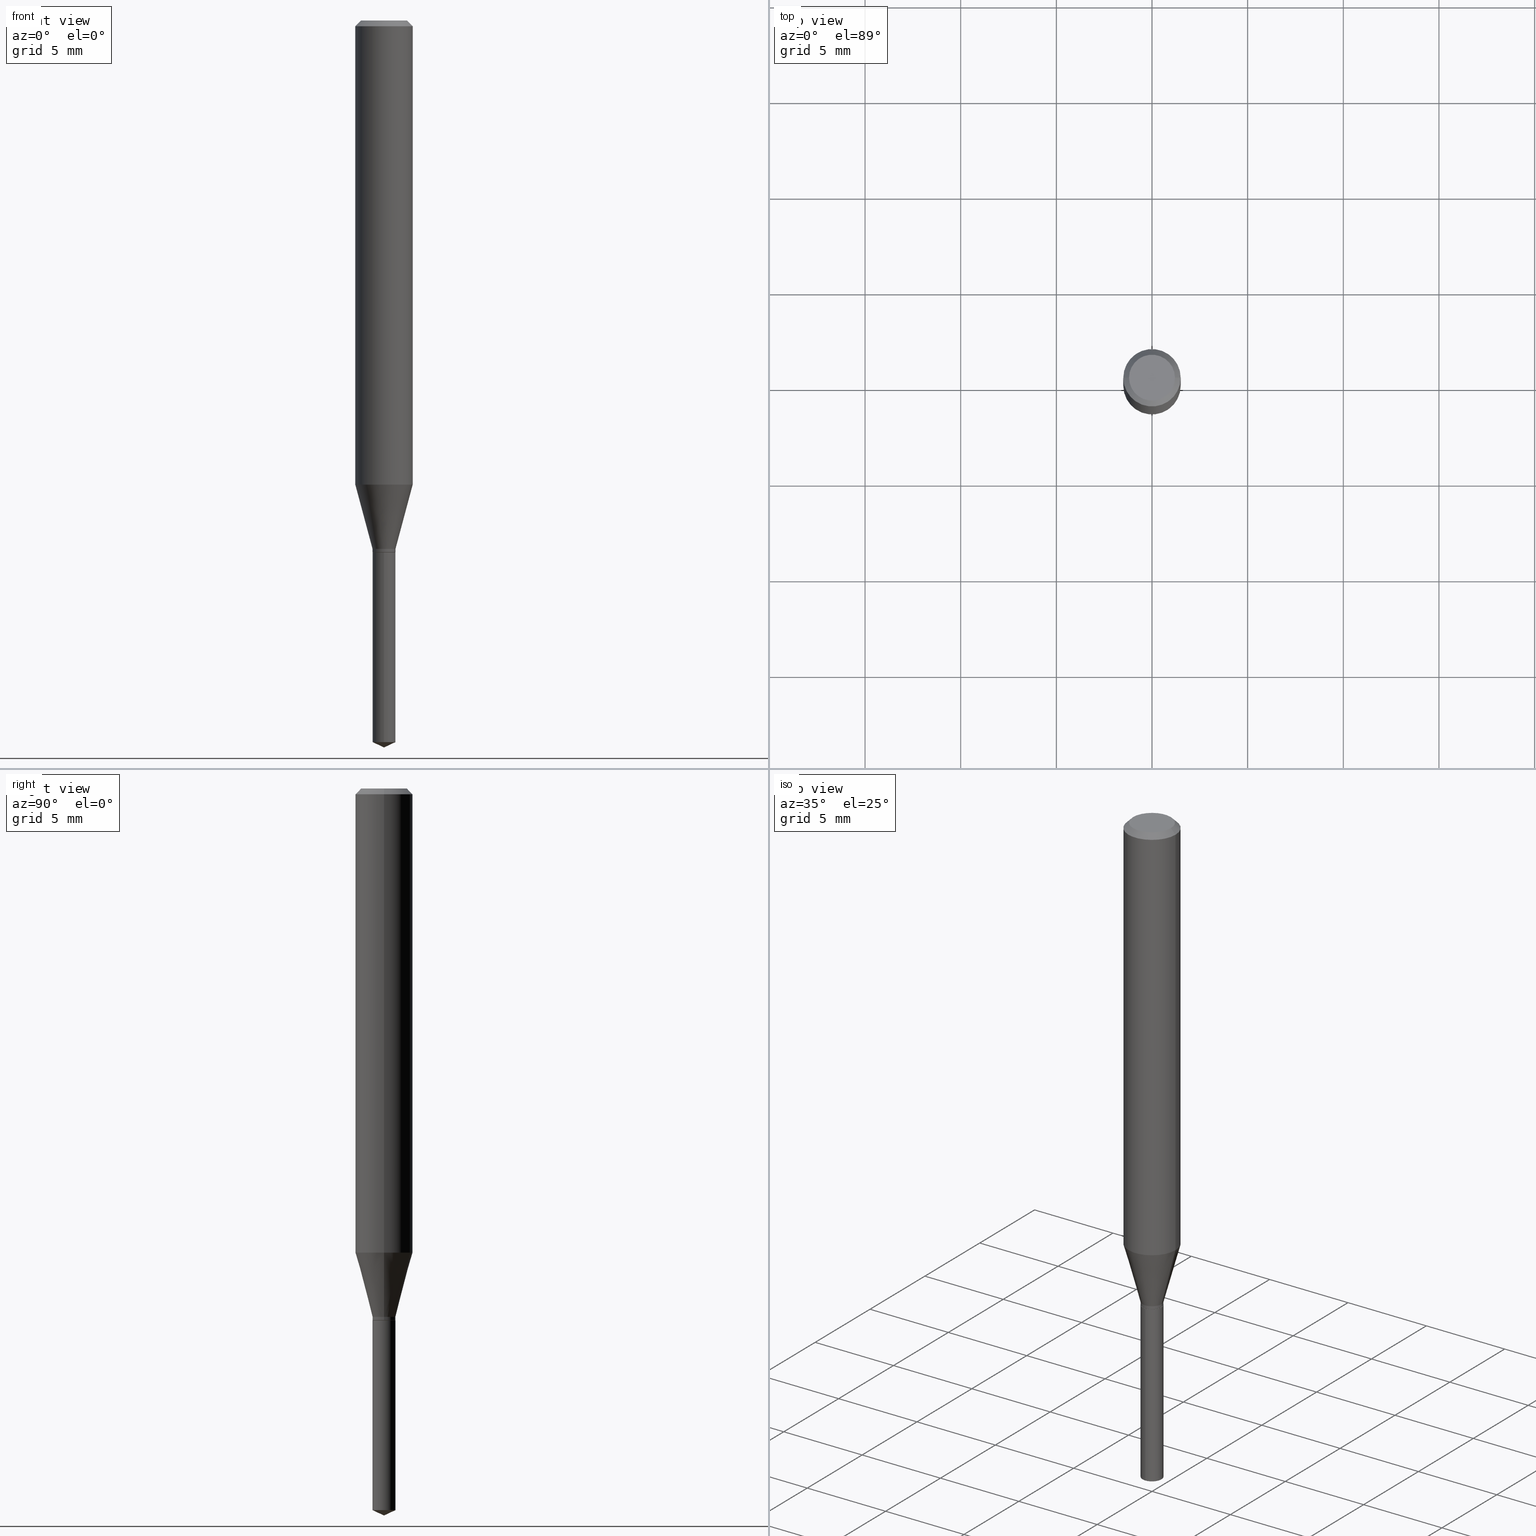
[diagram: canonical four-view strip — front | top / right | iso, engineering-drawing reading convention]
A machine part, canonical four-view strip (front | top / right | iso — engineering-drawing reading convention). The complete STEP part file that produces these views, byte-faithful:
ISO-10303-21;
HEADER;
FILE_DESCRIPTION (( 'STEP AP203' ),
    '1' );
FILE_NAME ('07504.STEP',
    '2024-04-23T22:12:35',
    ( '' ),
    ( '' ),
    'SwSTEP 2.0',
    'SolidWorks 2023',
    '' );
FILE_SCHEMA (( 'CONFIG_CONTROL_DESIGN' ));
ENDSEC;

DATA;
#1 = VECTOR ( 'NONE', #270, 39.37007874015748854 ) ;
#2 = DIRECTION ( 'NONE',  ( 1.000000000000000000, -6.982962677686266711E-15, 4.876176775795935793E-29 ) ) ;
#3 = CARTESIAN_POINT ( 'NONE',  ( -0.02360000000000000292, 1.676880856393836646E-16, -1.160868681300157803E-30 ) ) ;
#4 = DIRECTION ( 'NONE',  ( -2.445468806185136597E-29, 3.491481338843145583E-15, 1.000000000000000000 ) ) ;
#5 = CARTESIAN_POINT ( 'NONE',  ( 4.132873053354867254E-48, -5.900647395337818946E-34, -1.690012582823346072E-19 ) ) ;
#6 =( NAMED_UNIT ( * ) SI_UNIT ( $, .STERADIAN. ) SOLID_ANGLE_UNIT ( ) );
#7 = ORIENTED_EDGE ( 'NONE', *, *, #410, .T. ) ;
#8 = CIRCLE ( 'NONE', #490, 0.02360000000000000292 ) ;
#9 = DIRECTION ( 'NONE',  ( 1.000000000000000000, -6.982962677686265922E-15, 4.876176775795935793E-29 ) ) ;
#10 = LOCAL_TIME ( 18, 12, 35.00000000000000000, #83 ) ;
#11 = DIRECTION ( 'NONE',  ( -2.445468806185136597E-29, 3.491481338843145583E-15, 1.000000000000000000 ) ) ;
#12 = CARTESIAN_POINT ( 'NONE',  ( 1.676880856394200262E-16, 0.02359999999999617959, -1.094500000000000028 ) ) ;
#13 = DIRECTION ( 'NONE',  ( -6.982962677686265133E-15, -1.000000000000000000, 0.000000000000000000 ) ) ;
#14 = CIRCLE ( 'NONE', #194, 0.05904999999999999832 ) ;
#15 = FACE_OUTER_BOUND ( 'NONE', #235, .T. ) ;
#16 = EDGE_CURVE ( 'NONE', #343, #404, #303, .T. ) ;
#17 = DIRECTION ( 'NONE',  ( -2.445468806185136597E-29, 3.491481338843145583E-15, 1.000000000000000000 ) ) ;
#18 = COORDINATED_UNIVERSAL_TIME_OFFSET ( 5, 0, .BEHIND. ) ;
#19 = CC_DESIGN_DATE_AND_TIME_ASSIGNMENT ( #475, #26, ( #470 ) ) ;
#20 = DIRECTION ( 'NONE',  ( 1.000000000000000000, -6.982962677686258033E-15, 0.000000000000000000 ) ) ;
#21 = DATE_TIME_ROLE ( 'classification_date' ) ;
#22 = CLOSED_SHELL ( 'NONE', ( #240, #441, #362, #132, #291, #123, #340, #467, #376, #72, #391, #213 ) ) ;
#23 = CARTESIAN_POINT ( 'NONE',  ( -0.05904999999999999832, -1.268396528345520737E-15, -0.01181000000000007738 ) ) ;
#24 = CIRCLE ( 'NONE', #353, 0.02360000000000000292 ) ;
#25 = DESIGN_CONTEXT ( 'detailed design', #108, 'design' ) ;
#26 = DATE_TIME_ROLE ( 'creation_date' ) ;
#27 = FACE_OUTER_BOUND ( 'NONE', #420, .T. ) ;
#28 = ORIENTED_EDGE ( 'NONE', *, *, #334, .T. ) ;
#29 = EDGE_LOOP ( 'NONE', ( #409, #406, #33, #259 ) ) ;
#30 = ORIENTED_EDGE ( 'NONE', *, *, #358, .T. ) ;
#31 = CC_DESIGN_APPROVAL ( #96, ( #66 ) ) ;
#32 = DIRECTION ( 'NONE',  ( -2.445468806185136597E-29, 3.491481338843145583E-15, 1.000000000000000000 ) ) ;
#33 = ORIENTED_EDGE ( 'NONE', *, *, #169, .F. ) ;
#34 = FACE_OUTER_BOUND ( 'NONE', #29, .T. ) ;
#35 = ORIENTED_EDGE ( 'NONE', *, *, #221, .T. ) ;
#36 = DIRECTION ( 'NONE',  ( -6.328713451373376478E-15, -0.9063077870366493816, 0.4226182617407006070 ) ) ;
#37 = ORIENTED_EDGE ( 'NONE', *, *, #103, .F. ) ;
#38 = CONICAL_SURFACE ( 'NONE', #423, 0.02309999999999999901, 0.7853981633974141952 ) ;
#39 = DIRECTION ( 'NONE',  ( -2.445470214571802396E-29, 3.491479321953280158E-15, 1.000000000000000000 ) ) ;
#40 = DIRECTION ( 'NONE',  ( -1.000000000000000000, 6.982962677686265922E-15, -4.876176775795935793E-29 ) ) ;
#41 = EDGE_CURVE ( 'NONE', #294, #261, #190, .T. ) ;
#42 = CARTESIAN_POINT ( 'NONE',  ( 3.658664905062460986E-29, -5.223606628546217219E-15, -1.496099999999999985 ) ) ;
#43 = CARTESIAN_POINT ( 'NONE',  ( 0.02360000000000000292, -3.961434727051432093E-15, -1.087399999999999922 ) ) ;
#44 = EDGE_CURVE ( 'NONE', #256, #261, #271, .T. ) ;
#45 = ORIENTED_EDGE ( 'NONE', *, *, #476, .T. ) ;
#46 = MANIFOLD_SOLID_BREP ( 'Body-Move/Copy2[2]', #22 ) ;
#47 = AXIS2_PLACEMENT_3D ( 'NONE', #440, #477, #60 ) ;
#48 = CC_DESIGN_APPROVAL ( #342, ( #470 ) ) ;
#49 = VERTEX_POINT ( 'NONE', #12 ) ;
#50 = DIRECTION ( 'NONE',  ( -2.445468806185136597E-29, 3.491481338843145583E-15, 1.000000000000000000 ) ) ;
#51 = LINE ( 'NONE', #354, #166 ) ;
#52 = VECTOR ( 'NONE', #364, 39.37007874015747433 ) ;
#53 = FACE_OUTER_BOUND ( 'NONE', #138, .T. ) ;
#54 = AXIS2_PLACEMENT_3D ( 'NONE', #142, #459, #9 ) ;
#55 = CARTESIAN_POINT ( 'NONE',  ( 8.265746106709734507E-48, -1.180129479067563789E-33, -3.380025165646692144E-19 ) ) ;
#56 = DIRECTION ( 'NONE',  ( -2.445470214571802116E-29, 3.491479321953280158E-15, 1.000000000000000000 ) ) ;
#57 = CIRCLE ( 'NONE', #479, 0.04724000000000000421 ) ;
#58 = ORIENTED_EDGE ( 'NONE', *, *, #486, .F. ) ;
#59 = CALENDAR_DATE ( 2024, 23, 4 ) ;
#60 = DIRECTION ( 'NONE',  ( 1.000000000000000000, -6.982962677686258033E-15, 0.000000000000000000 ) ) ;
#61 = EDGE_LOOP ( 'NONE', ( #107, #478, #474, #77 ) ) ;
#62 = ORIENTED_EDGE ( 'NONE', *, *, #476, .F. ) ;
#63 = DIRECTION ( 'NONE',  ( -2.445470214571802116E-29, 3.491479321953280158E-15, 1.000000000000000000 ) ) ;
#64 = ORIENTED_EDGE ( 'NONE', *, *, #384, .F. ) ;
#65 = VECTOR ( 'NONE', #191, 39.37007874015747433 ) ;
#66 = SECURITY_CLASSIFICATION ( '', '', #348 ) ;
#67 = CC_DESIGN_PERSON_AND_ORGANIZATION_ASSIGNMENT ( #461, #290, ( #224 ) ) ;
#68 = ORIENTED_EDGE ( 'NONE', *, *, #324, .F. ) ;
#69 = CARTESIAN_POINT ( 'NONE',  ( 0.000000000000000000, 0.000000000000000000, 0.000000000000000000 ) ) ;
#70 = DIRECTION ( 'NONE',  ( 2.438088387897960049E-29, -3.491481338843145188E-15, -1.000000000000000000 ) ) ;
#71 = ORIENTED_EDGE ( 'NONE', *, *, #216, .F. ) ;
#72 = ADVANCED_FACE ( 'NONE', ( #383 ), #155, .F. ) ;
#73 = CIRCLE ( 'NONE', #274, 0.02360000000000000292 ) ;
#74 = CARTESIAN_POINT ( 'NONE',  ( 0.02309999999999999901, -3.982732763218375225E-15, -1.094499999999999806 ) ) ;
#75 = DIRECTION ( 'NONE',  ( -6.982962677686265133E-15, -1.000000000000000000, 0.000000000000000000 ) ) ;
#76 = DIRECTION ( 'NONE',  ( -2.445468806185136597E-29, 3.491481338843145583E-15, 1.000000000000000000 ) ) ;
#77 = ORIENTED_EDGE ( 'NONE', *, *, #183, .F. ) ;
#78 = LENGTH_MEASURE_WITH_UNIT ( LENGTH_MEASURE( 0.02539999999999999897 ), #145 );
#79 = ORIENTED_EDGE ( 'NONE', *, *, #16, .T. ) ;
#80 = CLOSED_SHELL ( 'NONE', ( #447, #243, #267, #116, #262 ) ) ;
#81 = CIRCLE ( 'NONE', #152, 0.02360000000000000292 ) ;
#82 = EDGE_CURVE ( 'NONE', #363, #404, #73, .T. ) ;
#83 = COORDINATED_UNIVERSAL_TIME_OFFSET ( 5, 0, .BEHIND. ) ;
#84 = CARTESIAN_POINT ( 'NONE',  ( 0.05905000000000013016, -3.747053579129358835E-15, -0.9550987988716831412 ) ) ;
#85 = DIRECTION ( 'NONE',  ( 1.000000000000000000, -6.982962677686258033E-15, 0.000000000000000000 ) ) ;
#86 = DIRECTION ( 'NONE',  ( -2.445470214571802116E-29, 3.491479321953280158E-15, 1.000000000000000000 ) ) ;
#87 = PRODUCT_RELATED_PRODUCT_CATEGORY ( 'detail', '', ( #224 ) ) ;
#88 = DIRECTION ( 'NONE',  ( -2.445468806185136597E-29, 3.491481338843145583E-15, 1.000000000000000000 ) ) ;
#89 = AXIS2_PLACEMENT_3D ( 'NONE', #69, #76, #2 ) ;
#90 = APPROVAL_DATE_TIME ( #325, #187 ) ;
#91 = CARTESIAN_POINT ( 'NONE',  ( 2.888098660104665518E-31, -4.123439461173782112E-17, -0.01181000000000007738 ) ) ;
#92 = APPROVAL_STATUS ( 'not_yet_approved' ) ;
#93 = EDGE_CURVE ( 'NONE', #329, #488, #24, .T. ) ;
#94 = ORIENTED_EDGE ( 'NONE', *, *, #82, .T. ) ;
#95 = DATE_AND_TIME ( #131, #281 ) ;
#96 = APPROVAL ( #195, 'UNSPECIFIED' ) ;
#97 = CIRCLE ( 'NONE', #47, 0.02360000000000000292 ) ;
#98 = ORIENTED_EDGE ( 'NONE', *, *, #158, .T. ) ;
#99 = AXIS2_PLACEMENT_3D ( 'NONE', #171, #104, #484 ) ;
#100 = APPROVAL_ROLE ( '' ) ;
#101 = LINE ( 'NONE', #257, #286 ) ;
#102 = ORIENTED_EDGE ( 'NONE', *, *, #41, .T. ) ;
#103 = EDGE_CURVE ( 'NONE', #363, #143, #381, .T. ) ;
#104 = DIRECTION ( 'NONE',  ( 2.445468806185136597E-29, -3.491481338843145583E-15, -1.000000000000000000 ) ) ;
#105 = ORIENTED_EDGE ( 'NONE', *, *, #297, .F. ) ;
#106 = FACE_OUTER_BOUND ( 'NONE', #414, .T. ) ;
#107 = ORIENTED_EDGE ( 'NONE', *, *, #16, .F. ) ;
#108 = APPLICATION_CONTEXT ( 'configuration controlled 3d designs of mechanical parts and assemblies' ) ;
#109 = CIRCLE ( 'NONE', #430, 0.02360000000000000292 ) ;
#110 = DIRECTION ( 'NONE',  ( -0.7071067811865232589, 7.493145998870265808E-15, 0.7071067811865715536 ) ) ;
#111 = CARTESIAN_POINT ( 'NONE',  ( -0.05905000000000006077, 4.195754854663395916E-16, -2.904631170795524694E-30 ) ) ;
#112 = ORIENTED_EDGE ( 'NONE', *, *, #103, .T. ) ;
#113 = VERTEX_POINT ( 'NONE', #412 ) ;
#114 = CIRCLE ( 'NONE', #449, 0.02360000000000000292 ) ;
#115 = FACE_OUTER_BOUND ( 'NONE', #61, .T. ) ;
#116 = ADVANCED_FACE ( 'NONE', ( #196 ), #118, .T. ) ;
#117 = CARTESIAN_POINT ( 'NONE',  ( -0.02309999999999999901, -3.657290953403239563E-15, -1.094499999999999806 ) ) ;
#118 = CYLINDRICAL_SURFACE ( 'NONE', #346, 0.02360000000000000292 ) ;
#119 = CALENDAR_DATE ( 2024, 23, 4 ) ;
#120 = CARTESIAN_POINT ( 'NONE',  ( -9.261968845786000133E-28, 1.322362114038720264E-13, 37.87397874015748300 ) ) ;
#121 = CONICAL_SURFACE ( 'NONE', #456, 0.02360000000000000292, 0.2617993877991500740 ) ;
#122 = CARTESIAN_POINT ( 'NONE',  ( 2.676565608369631794E-29, -3.821426325363822773E-15, -1.094499999999999806 ) ) ;
#123 = ADVANCED_FACE ( 'NONE', ( #115 ), #156, .T. ) ;
#124 = FACE_OUTER_BOUND ( 'NONE', #233, .T. ) ;
#125 = CARTESIAN_POINT ( 'NONE',  ( -1.647979191933691307E-16, -0.02360000000000382278, -1.094499999999999806 ) ) ;
#126 = APPROVAL_ROLE ( '' ) ;
#127 = CIRCLE ( 'NONE', #471, 0.02360000000000000292 ) ;
#128 = DIRECTION ( 'NONE',  ( -2.445470214571802116E-29, 3.491479321953280158E-15, 1.000000000000000000 ) ) ;
#129 = EDGE_CURVE ( 'NONE', #329, #180, #51, .T. ) ;
#130 = CARTESIAN_POINT ( 'NONE',  ( -1.647979191933595904E-16, -0.02360000000000518627, -1.485095139267541997 ) ) ;
#131 = CALENDAR_DATE ( 2024, 23, 4 ) ;
#132 = ADVANCED_FACE ( 'NONE', ( #357 ), #438, .T. ) ;
#133 = DIRECTION ( 'NONE',  ( -6.982962677686265133E-15, -1.000000000000000000, 5.787813545898861862E-15 ) ) ;
#134 = ORIENTED_EDGE ( 'NONE', *, *, #328, .F. ) ;
#135 = PERSON_AND_ORGANIZATION_ROLE ( 'design_supplier' ) ;
#136 = CARTESIAN_POINT ( 'NONE',  ( 3.658667988020872822E-29, -5.223602213574301462E-15, -1.496099999999999985 ) ) ;
#137 = CONICAL_SURFACE ( 'NONE', #368, 84.42940631927444883, 1.134464013796316451 ) ;
#138 = EDGE_LOOP ( 'NONE', ( #326, #302, #58, #375 ) ) ;
#139 = VECTOR ( 'NONE', #39, 39.37007874015748143 ) ;
#140 = DIRECTION ( 'NONE',  ( 1.000000000000000000, -6.982962677686266711E-15, 4.876176775795935793E-29 ) ) ;
#141 = ORIENTED_EDGE ( 'NONE', *, *, #297, .T. ) ;
#142 = CARTESIAN_POINT ( 'NONE',  ( 2.676565608369631794E-29, -3.821426325363822773E-15, -1.094499999999999806 ) ) ;
#143 = VERTEX_POINT ( 'NONE', #84 ) ;
#144 = CIRCLE ( 'NONE', #254, 0.02309999999999999901 ) ;
#145 =( LENGTH_UNIT ( ) NAMED_UNIT ( * ) SI_UNIT ( $, .METRE. ) );
#146 = DIRECTION ( 'NONE',  ( -2.445468806185136877E-29, 3.491481338843145188E-15, 1.000000000000000000 ) ) ;
#147 = CC_DESIGN_PERSON_AND_ORGANIZATION_ASSIGNMENT ( #435, #249, ( #188 ) ) ;
#148 =( CONVERSION_BASED_UNIT ( 'INCH', #78 ) LENGTH_UNIT ( ) NAMED_UNIT ( #355 ) );
#149 = ORIENTED_EDGE ( 'NONE', *, *, #382, .F. ) ;
#150 = ADVANCED_BREP_SHAPE_REPRESENTATION ( '07504', ( #387, #46, #238 ), #388 ) ;
#151 = DIRECTION ( 'NONE',  ( -2.445470214571802116E-29, 3.491479321953280158E-15, 1.000000000000000000 ) ) ;
#152 = AXIS2_PLACEMENT_3D ( 'NONE', #241, #428, #394 ) ;
#153 = LOCAL_TIME ( 18, 12, 35.00000000000000000, #173 ) ;
#154 = LINE ( 'NONE', #117, #450 ) ;
#155 = PLANE ( 'NONE',  #377 ) ;
#156 = CYLINDRICAL_SURFACE ( 'NONE', #299, 0.02360000000000000292 ) ;
#157 = DIRECTION ( 'NONE',  ( -2.445468806185136597E-29, 3.491481338843145583E-15, 1.000000000000000000 ) ) ;
#158 = EDGE_CURVE ( 'NONE', #175, #113, #338, .T. ) ;
#159 = AXIS2_PLACEMENT_3D ( 'NONE', #260, #372, #445 ) ;
#160 = AXIS2_PLACEMENT_3D ( 'NONE', #276, #232, #413 ) ;
#161 = CARTESIAN_POINT ( 'NONE',  ( 3.658668015054778287E-29, -5.223602213574301462E-15, -1.496099999999999985 ) ) ;
#162 = DIRECTION ( 'NONE',  ( -6.982962677686266711E-15, -1.000000000000000000, 3.520397390770449137E-15 ) ) ;
#163 = CARTESIAN_POINT ( 'NONE',  ( 2.676565608369631794E-29, -3.821426325363822773E-15, -1.094499999999999806 ) ) ;
#164 = APPROVAL_DATE_TIME ( #252, #96 ) ;
#165 = AXIS2_PLACEMENT_3D ( 'NONE', #403, #167, #140 ) ;
#166 = VECTOR ( 'NONE', #352, 39.37007874015748143 ) ;
#167 = DIRECTION ( 'NONE',  ( -2.445468806185136597E-29, 3.491481338843145583E-15, 1.000000000000000000 ) ) ;
#168 = APPROVAL_PERSON_ORGANIZATION ( #208, #342, #126 ) ;
#169 = EDGE_CURVE ( 'NONE', #180, #49, #127, .T. ) ;
#170 = APPROVAL_STATUS ( 'not_yet_approved' ) ;
#171 = CARTESIAN_POINT ( 'NONE',  ( 2.888098660104665518E-31, -4.123439461173782112E-17, -0.01181000000000007738 ) ) ;
#172 = ORIENTED_EDGE ( 'NONE', *, *, #82, .F. ) ;
#173 = COORDINATED_UNIVERSAL_TIME_OFFSET ( 5, 0, .BEHIND. ) ;
#174 = CARTESIAN_POINT ( 'NONE',  ( 0.000000000000000000, 0.000000000000000000, 0.000000000000000000 ) ) ;
#175 = VERTEX_POINT ( 'NONE', #242 ) ;
#176 = DIRECTION ( 'NONE',  ( -2.445468806185136597E-29, 3.491481338843145583E-15, 1.000000000000000000 ) ) ;
#177 = CIRCLE ( 'NONE', #159, 0.05905000000000011628 ) ;
#178 = ORIENTED_EDGE ( 'NONE', *, *, #199, .T. ) ;
#179 = CARTESIAN_POINT ( 'NONE',  ( 2.676565608369631794E-29, -3.821426325363822773E-15, -1.094499999999999806 ) ) ;
#180 = VERTEX_POINT ( 'NONE', #125 ) ;
#181 = CARTESIAN_POINT ( 'NONE',  ( 2.888098660104665518E-31, -4.123439461173782112E-17, -0.01181000000000007738 ) ) ;
#182 = EDGE_LOOP ( 'NONE', ( #335, #298 ) ) ;
#183 = EDGE_CURVE ( 'NONE', #404, #363, #81, .T. ) ;
#184 = CARTESIAN_POINT ( 'NONE',  ( 2.675342873966538993E-29, -3.819680584694400481E-15, -1.093999999999999861 ) ) ;
#185 = ORIENTED_EDGE ( 'NONE', *, *, #397, .F. ) ;
#186 = VECTOR ( 'NONE', #390, 39.37007874015748143 ) ;
#187 = APPROVAL ( #170, 'UNSPECIFIED' ) ;
#188 = PRODUCT_DEFINITION_FORMATION_WITH_SPECIFIED_SOURCE ( 'ANY', '', #224, .NOT_KNOWN. ) ;
#189 = DIRECTION ( 'NONE',  ( 1.000000000000000000, 0.000000000000000000, 0.000000000000000000 ) ) ;
#190 = LINE ( 'NONE', #379, #463 ) ;
#191 = DIRECTION ( 'NONE',  ( 0.2588190451025213501, 1.565188264969621968E-15, 0.9659258262890682012 ) ) ;
#192 = FACE_OUTER_BOUND ( 'NONE', #402, .T. ) ;
#193 = EDGE_LOOP ( 'NONE', ( #62, #251, #483 ) ) ;
#194 = AXIS2_PLACEMENT_3D ( 'NONE', #91, #88, #351 ) ;
#195 = APPROVAL_STATUS ( 'not_yet_approved' ) ;
#196 = FACE_OUTER_BOUND ( 'NONE', #332, .T. ) ;
#197 = PERSON_AND_ORGANIZATION ( #448, #237 ) ;
#198 = DIRECTION ( 'NONE',  ( 1.000000000000000000, -6.982962677686258033E-15, 0.000000000000000000 ) ) ;
#199 = EDGE_CURVE ( 'NONE', #488, #329, #114, .T. ) ;
#200 = LINE ( 'NONE', #161, #209 ) ;
#201 = AXIS2_PLACEMENT_3D ( 'NONE', #174, #436, #366 ) ;
#202 = APPROVAL_PERSON_ORGANIZATION ( #239, #96, #100 ) ;
#203 = DIRECTION ( 'NONE',  ( 1.000000000000000000, -6.982962677686258033E-15, 0.000000000000000000 ) ) ;
#204 = DIRECTION ( 'NONE',  ( 1.000000000000000000, -6.982962677686266711E-15, 4.876185090822587894E-29 ) ) ;
#205 = CALENDAR_DATE ( 2024, 23, 4 ) ;
#206 = CC_DESIGN_PERSON_AND_ORGANIZATION_ASSIGNMENT ( #400, #247, ( #470 ) ) ;
#207 = DIRECTION ( 'NONE',  ( -2.445468806185136597E-29, 3.491481338843145583E-15, 1.000000000000000000 ) ) ;
#208 = PERSON_AND_ORGANIZATION ( #448, #237 ) ;
#209 = VECTOR ( 'NONE', #465, 39.37007874015748143 ) ;
#210 = CARTESIAN_POINT ( 'NONE',  ( 8.265746106709734507E-48, -1.180129479067563789E-33, -3.380025165646692144E-19 ) ) ;
#211 = ORIENTED_EDGE ( 'NONE', *, *, #311, .F. ) ;
#212 = EDGE_LOOP ( 'NONE', ( #94, #296, #149, #37 ) ) ;
#213 = ADVANCED_FACE ( 'NONE', ( #246 ), #38, .T. ) ;
#214 = CARTESIAN_POINT ( 'NONE',  ( 2.659202779845717713E-29, -3.796636807858036634E-15, -1.087399999999999922 ) ) ;
#215 = ORIENTED_EDGE ( 'NONE', *, *, #199, .F. ) ;
#216 = EDGE_CURVE ( 'NONE', #294, #485, #407, .T. ) ;
#217 = CARTESIAN_POINT ( 'NONE',  ( 0.02360000000000000292, -3.961434727051432093E-15, -1.087399999999999922 ) ) ;
#218 = AXIS2_PLACEMENT_3D ( 'NONE', #314, #319, #20 ) ;
#219 = ORIENTED_EDGE ( 'NONE', *, *, #158, .F. ) ;
#220 = CONICAL_SURFACE ( 'NONE', #99, 0.05904999999999999832, 0.7853981633974449483 ) ;
#221 = EDGE_CURVE ( 'NONE', #444, #261, #14, .T. ) ;
#222 = CYLINDRICAL_SURFACE ( 'NONE', #165, 0.05905000000000006077 ) ;
#223 = ORIENTED_EDGE ( 'NONE', *, *, #255, .F. ) ;
#224 = PRODUCT ( '07504', '07504', '', ( #468 ) ) ;
#225 = LINE ( 'NONE', #42, #425 ) ;
#226 = ORIENTED_EDGE ( 'NONE', *, *, #169, .T. ) ;
#227 = ORIENTED_EDGE ( 'NONE', *, *, #358, .F. ) ;
#228 = AXIS2_PLACEMENT_3D ( 'NONE', #55, #157, #204 ) ;
#229 = CC_DESIGN_SECURITY_CLASSIFICATION ( #66, ( #188 ) ) ;
#230 = FACE_OUTER_BOUND ( 'NONE', #337, .T. ) ;
#231 = DIRECTION ( 'NONE',  ( 1.000000000000000000, -6.982962677686258033E-15, 0.000000000000000000 ) ) ;
#232 = DIRECTION ( 'NONE',  ( -2.445470214571802116E-29, 3.491479321953280158E-15, 1.000000000000000000 ) ) ;
#233 = EDGE_LOOP ( 'NONE', ( #455, #79, #172, #422 ) ) ;
#234 =( NAMED_UNIT ( * ) PLANE_ANGLE_UNIT ( ) SI_UNIT ( $, .RADIAN. ) );
#235 = EDGE_LOOP ( 'NONE', ( #226, #141 ) ) ;
#236 = CIRCLE ( 'NONE', #417, 0.05905000000000011628 ) ;
#237 = ORGANIZATION ( 'UNSPECIFIED', 'UNSPECIFIED', '' ) ;
#238 = AXIS2_PLACEMENT_3D ( 'NONE', #378, #344, #189 ) ;
#239 = PERSON_AND_ORGANIZATION ( #448, #237 ) ;
#240 = ADVANCED_FACE ( 'NONE', ( #53 ), #385, .T. ) ;
#241 = CARTESIAN_POINT ( 'NONE',  ( 2.659202779845717713E-29, -3.796636807858036634E-15, -1.087399999999999922 ) ) ;
#242 = CARTESIAN_POINT ( 'NONE',  ( -0.02309999999999999901, -3.654641726229128362E-15, -1.094499999999999806 ) ) ;
#243 = ADVANCED_FACE ( 'NONE', ( #469 ), #137, .T. ) ;
#244 = DIRECTION ( 'NONE',  ( -2.445468806185136597E-29, 3.491481338843145583E-15, 1.000000000000000000 ) ) ;
#245 = CIRCLE ( 'NONE', #321, 0.05904999999999999832 ) ;
#246 = FACE_OUTER_BOUND ( 'NONE', #365, .T. ) ;
#247 = PERSON_AND_ORGANIZATION_ROLE ( 'creator' ) ;
#248 = PLANE ( 'NONE',  #315 ) ;
#249 = PERSON_AND_ORGANIZATION_ROLE ( 'creator' ) ;
#250 = DIRECTION ( 'NONE',  ( -2.445468806185136597E-29, 3.491481338843145583E-15, 1.000000000000000000 ) ) ;
#251 = ORIENTED_EDGE ( 'NONE', *, *, #282, .T. ) ;
#252 = DATE_AND_TIME ( #119, #301 ) ;
#253 = VECTOR ( 'NONE', #453, 39.37007874015748143 ) ;
#254 = AXIS2_PLACEMENT_3D ( 'NONE', #429, #317, #85 ) ;
#255 = EDGE_CURVE ( 'NONE', #113, #175, #144, .T. ) ;
#256 = VERTEX_POINT ( 'NONE', #316 ) ;
#257 = CARTESIAN_POINT ( 'NONE',  ( 0.05905000000000006077, -4.123439461173744764E-16, 2.879382386107503023E-30 ) ) ;
#258 = CC_DESIGN_PERSON_AND_ORGANIZATION_ASSIGNMENT ( #327, #473, ( #66 ) ) ;
#259 = ORIENTED_EDGE ( 'NONE', *, *, #129, .F. ) ;
#260 = CARTESIAN_POINT ( 'NONE',  ( 2.335664319465593009E-29, -3.334709633011984309E-15, -0.9550987988716831412 ) ) ;
#261 = VERTEX_POINT ( 'NONE', #23 ) ;
#262 = ADVANCED_FACE ( 'NONE', ( #15 ), #248, .F. ) ;
#263 = DIRECTION ( 'NONE',  ( 1.000000000000000000, -6.982962677686266711E-15, 0.000000000000000000 ) ) ;
#264 = AXIS2_PLACEMENT_3D ( 'NONE', #163, #244, #198 ) ;
#265 = PRODUCT_DEFINITION_SHAPE ( 'NONE', 'NONE',  #470 ) ;
#266 = EDGE_LOOP ( 'NONE', ( #306, #45, #215 ) ) ;
#267 = ADVANCED_FACE ( 'NONE', ( #283 ), #415, .T. ) ;
#268 = CYLINDRICAL_SURFACE ( 'NONE', #89, 0.05905000000000006077 ) ;
#269 = EDGE_LOOP ( 'NONE', ( #223, #219 ) ) ;
#270 = DIRECTION ( 'NONE',  ( 0.7071067811865232589, -2.468850131082003836E-15, 0.7071067811865715536 ) ) ;
#271 = LINE ( 'NONE', #111, #253 ) ;
#272 = CARTESIAN_POINT ( 'NONE',  ( -0.02360000000000000292, -3.640470610636835238E-15, -1.087399999999999922 ) ) ;
#273 = DIRECTION ( 'NONE',  ( -2.445470214571802116E-29, 3.491479321953280158E-15, 1.000000000000000000 ) ) ;
#274 = AXIS2_PLACEMENT_3D ( 'NONE', #345, #11, #231 ) ;
#275 = ORIENTED_EDGE ( 'NONE', *, *, #183, .T. ) ;
#276 = CARTESIAN_POINT ( 'NONE',  ( 2.676565608369631794E-29, -3.821426325363822773E-15, -1.094499999999999806 ) ) ;
#277 = DIRECTION ( 'NONE',  ( -0.7071067811865451302, 2.468850131082231817E-15, -0.7071067811865499042 ) ) ;
#278 = EDGE_CURVE ( 'NONE', #371, #363, #427, .T. ) ;
#279 = DATE_AND_TIME ( #59, #153 ) ;
#280 = CARTESIAN_POINT ( 'NONE',  ( 0.02360000000000000292, -1.647979191933959273E-16, 1.150777719087840955E-30 ) ) ;
#281 = LOCAL_TIME ( 18, 12, 35.00000000000000000, #18 ) ;
#282 = EDGE_CURVE ( 'NONE', #341, #488, #200, .T. ) ;
#283 = FACE_OUTER_BOUND ( 'NONE', #266, .T. ) ;
#284 = DIRECTION ( 'NONE',  ( -6.982962677686265133E-15, -1.000000000000000000, 5.787813545898861862E-15 ) ) ;
#285 = DIRECTION ( 'NONE',  ( 2.445470214571801836E-29, -3.491479321953280158E-15, -1.000000000000000000 ) ) ;
#286 = VECTOR ( 'NONE', #482, 39.37007874015748143 ) ;
#287 = APPROVAL_PERSON_ORGANIZATION ( #320, #187, #312 ) ;
#288 = DIRECTION ( 'NONE',  ( 1.000000000000000000, -6.982962677686258033E-15, 0.000000000000000000 ) ) ;
#289 = CARTESIAN_POINT ( 'NONE',  ( -0.02360000000000000292, -3.628948722218652525E-15, -1.087399999999999922 ) ) ;
#290 = PERSON_AND_ORGANIZATION_ROLE ( 'design_owner' ) ;
#291 = ADVANCED_FACE ( 'NONE', ( #124 ), #466, .T. ) ;
#292 = ORIENTED_EDGE ( 'NONE', *, *, #221, .F. ) ;
#293 = COORDINATED_UNIVERSAL_TIME_OFFSET ( 5, 0, .BEHIND. ) ;
#294 = VERTEX_POINT ( 'NONE', #361 ) ;
#295 = CARTESIAN_POINT ( 'NONE',  ( 0.02360000000000000292, -3.984478503887796729E-15, -1.093999999999999861 ) ) ;
#296 = ORIENTED_EDGE ( 'NONE', *, *, #311, .T. ) ;
#297 = EDGE_CURVE ( 'NONE', #49, #180, #8, .T. ) ;
#298 = ORIENTED_EDGE ( 'NONE', *, *, #304, .T. ) ;
#299 = AXIS2_PLACEMENT_3D ( 'NONE', #452, #207, #431 ) ;
#300 = LINE ( 'NONE', #74, #1 ) ;
#301 = LOCAL_TIME ( 18, 12, 35.00000000000000000, #396 ) ;
#302 = ORIENTED_EDGE ( 'NONE', *, *, #426, .T. ) ;
#303 = LINE ( 'NONE', #3, #489 ) ;
#304 = EDGE_CURVE ( 'NONE', #485, #294, #57, .T. ) ;
#305 = APPLICATION_PROTOCOL_DEFINITION ( 'international standard', 'config_control_design', 1994, #318 ) ;
#306 = ORIENTED_EDGE ( 'NONE', *, *, #282, .F. ) ;
#307 = DIRECTION ( 'NONE',  ( 1.000000000000000000, -6.982962677686258033E-15, 0.000000000000000000 ) ) ;
#308 = CARTESIAN_POINT ( 'NONE',  ( 3.631754387404930906E-29, -5.185181177371907688E-15, -1.485095139267541997 ) ) ;
#309 = CARTESIAN_POINT ( 'NONE',  ( 0.04724000000000000421, -3.852183633974369838E-16, -3.380025165621689721E-19 ) ) ;
#310 = CARTESIAN_POINT ( 'NONE',  ( 2.676565608369631794E-29, -3.821426325363822773E-15, -1.094499999999999806 ) ) ;
#311 = EDGE_CURVE ( 'NONE', #404, #256, #405, .T. ) ;
#312 = APPROVAL_ROLE ( '' ) ;
#313 = DIRECTION ( 'NONE',  ( -2.445470214571802116E-29, 3.491479321953280158E-15, 1.000000000000000000 ) ) ;
#314 = CARTESIAN_POINT ( 'NONE',  ( 2.676565608369631794E-29, -3.821426325363822773E-15, -1.094499999999999806 ) ) ;
#315 = AXIS2_PLACEMENT_3D ( 'NONE', #122, #285, #395 ) ;
#316 = CARTESIAN_POINT ( 'NONE',  ( -0.05905000000000013016, -2.915134147545644027E-15, -0.9550987988716831412 ) ) ;
#317 = DIRECTION ( 'NONE',  ( -2.445468806185136597E-29, 3.491481338843145583E-15, 1.000000000000000000 ) ) ;
#318 = APPLICATION_CONTEXT ( 'configuration controlled 3d designs of mechanical parts and assemblies' ) ;
#319 = DIRECTION ( 'NONE',  ( -2.445468806185136597E-29, 3.491481338843145583E-15, 1.000000000000000000 ) ) ;
#320 = PERSON_AND_ORGANIZATION ( #448, #237 ) ;
#321 = AXIS2_PLACEMENT_3D ( 'NONE', #333, #176, #434 ) ;
#322 = DIRECTION ( 'NONE',  ( -2.445468806185136597E-29, 3.491481338843145583E-15, 1.000000000000000000 ) ) ;
#323 = UNCERTAINTY_MEASURE_WITH_UNIT (LENGTH_MEASURE( 1.000000000000000082E-05 ), #148, 'distance_accuracy_value', 'NONE');
#324 = EDGE_CURVE ( 'NONE', #343, #371, #97, .T. ) ;
#325 = DATE_AND_TIME ( #439, #401 ) ;
#326 = ORIENTED_EDGE ( 'NONE', *, *, #255, .T. ) ;
#327 = PERSON_AND_ORGANIZATION ( #448, #237 ) ;
#328 = EDGE_CURVE ( 'NONE', #256, #143, #177, .T. ) ;
#329 = VERTEX_POINT ( 'NONE', #130 ) ;
#330 = AXIS2_PLACEMENT_3D ( 'NONE', #424, #17, #288 ) ;
#331 = CARTESIAN_POINT ( 'NONE',  ( -0.02360000000000000292, -3.640470610636835238E-15, -1.093999999999999861 ) ) ;
#332 = EDGE_LOOP ( 'NONE', ( #185, #178, #437, #105 ) ) ;
#333 = CARTESIAN_POINT ( 'NONE',  ( 2.888098660104665518E-31, -4.123439461173782112E-17, -0.01181000000000007738 ) ) ;
#334 = EDGE_CURVE ( 'NONE', #261, #444, #245, .T. ) ;
#335 = ORIENTED_EDGE ( 'NONE', *, *, #216, .T. ) ;
#336 = DIRECTION ( 'NONE',  ( 2.445468806185136597E-29, -3.491481338843145583E-15, -1.000000000000000000 ) ) ;
#337 = EDGE_LOOP ( 'NONE', ( #399, #339, #35, #460 ) ) ;
#338 = CIRCLE ( 'NONE', #264, 0.02309999999999999901 ) ;
#339 = ORIENTED_EDGE ( 'NONE', *, *, #384, .T. ) ;
#340 = ADVANCED_FACE ( 'NONE', ( #106 ), #121, .T. ) ;
#341 = VERTEX_POINT ( 'NONE', #136 ) ;
#342 = APPROVAL ( #92, 'UNSPECIFIED' ) ;
#343 = VERTEX_POINT ( 'NONE', #331 ) ;
#344 = DIRECTION ( 'NONE',  ( 0.000000000000000000, 0.000000000000000000, 1.000000000000000000 ) ) ;
#345 = CARTESIAN_POINT ( 'NONE',  ( 2.659202779845717713E-29, -3.796636807858036634E-15, -1.087399999999999922 ) ) ;
#346 = AXIS2_PLACEMENT_3D ( 'NONE', #310, #151, #458 ) ;
#347 = AXIS2_PLACEMENT_3D ( 'NONE', #181, #336, #380 ) ;
#348 = SECURITY_CLASSIFICATION_LEVEL ( 'unclassified' ) ;
#349 = ORIENTED_EDGE ( 'NONE', *, *, #328, .T. ) ;
#350 = APPLICATION_PROTOCOL_DEFINITION ( 'international standard', 'config_control_design', 1994, #108 ) ;
#351 = DIRECTION ( 'NONE',  ( 1.000000000000000000, -6.982962677686266711E-15, 0.000000000000000000 ) ) ;
#352 = DIRECTION ( 'NONE',  ( -2.445470214571802396E-29, 3.491479321953280158E-15, 1.000000000000000000 ) ) ;
#353 = AXIS2_PLACEMENT_3D ( 'NONE', #308, #273, #75 ) ;
#354 = CARTESIAN_POINT ( 'NONE',  ( -1.647979191933691307E-16, -0.02360000000000382278, -1.094499999999999806 ) ) ;
#355 = DIMENSIONAL_EXPONENTS ( 1.000000000000000000, 0.000000000000000000, 0.000000000000000000, 0.000000000000000000, 0.000000000000000000, 0.000000000000000000, 0.000000000000000000 ) ;
#356 = CARTESIAN_POINT ( 'NONE',  ( 2.676565608369631794E-29, -3.821426325363822773E-15, -1.094499999999999806 ) ) ;
#357 = FACE_OUTER_BOUND ( 'NONE', #212, .T. ) ;
#358 = EDGE_CURVE ( 'NONE', #143, #444, #101, .T. ) ;
#359 = APPROVAL_DATE_TIME ( #279, #342 ) ;
#360 = CONICAL_SURFACE ( 'NONE', #347, 0.05904999999999999832, 0.7853981633974449483 ) ;
#361 = CARTESIAN_POINT ( 'NONE',  ( -0.04724000000000000421, 3.504923541997677355E-16, -3.380025165670481712E-19 ) ) ;
#362 = ADVANCED_FACE ( 'NONE', ( #27 ), #222, .T. ) ;
#363 = VERTEX_POINT ( 'NONE', #217 ) ;
#364 = DIRECTION ( 'NONE',  ( -0.2588190451025213501, 5.211531920934551042E-15, 0.9659258262890682012 ) ) ;
#365 = EDGE_LOOP ( 'NONE', ( #386, #98, #7, #68 ) ) ;
#366 = DIRECTION ( 'NONE',  ( 1.000000000000000000, -6.982962677686267499E-15, 4.876176775795935793E-29 ) ) ;
#367 = ORIENTED_EDGE ( 'NONE', *, *, #334, .F. ) ;
#368 = AXIS2_PLACEMENT_3D ( 'NONE', #464, #128, #162 ) ;
#369 = VECTOR ( 'NONE', #374, 39.37007874015748143 ) ;
#370 = CARTESIAN_POINT ( 'NONE',  ( 2.335664319465593009E-29, -3.334709633011984309E-15, -0.9550987988716831412 ) ) ;
#371 = VERTEX_POINT ( 'NONE', #295 ) ;
#372 = DIRECTION ( 'NONE',  ( -2.445468806185136597E-29, 3.491481338843145583E-15, 1.000000000000000000 ) ) ;
#373 = EDGE_LOOP ( 'NONE', ( #64, #71, #102, #28 ) ) ;
#374 = DIRECTION ( 'NONE',  ( 0.7071067811865451302, -7.319954787623248157E-15, -0.7071067811865499042 ) ) ;
#375 = ORIENTED_EDGE ( 'NONE', *, *, #410, .F. ) ;
#376 = ADVANCED_FACE ( 'NONE', ( #443 ), #220, .T. ) ;
#377 = AXIS2_PLACEMENT_3D ( 'NONE', #5, #70, #40 ) ;
#378 = CARTESIAN_POINT ( 'NONE',  ( 0.000000000000000000, 0.000000000000000000, 0.000000000000000000 ) ) ;
#379 = CARTESIAN_POINT ( 'NONE',  ( -0.05904999999999999832, 3.711095515056362054E-16, -0.01181000000000007738 ) ) ;
#380 = DIRECTION ( 'NONE',  ( -1.000000000000000000, 6.982962677686266711E-15, 0.000000000000000000 ) ) ;
#381 = LINE ( 'NONE', #43, #65 ) ;
#382 = EDGE_CURVE ( 'NONE', #143, #256, #236, .T. ) ;
#383 = FACE_OUTER_BOUND ( 'NONE', #182, .T. ) ;
#384 = EDGE_CURVE ( 'NONE', #485, #444, #408, .T. ) ;
#385 = CONICAL_SURFACE ( 'NONE', #218, 0.02309999999999999901, 0.7853981633974141952 ) ;
#386 = ORIENTED_EDGE ( 'NONE', *, *, #426, .F. ) ;
#387 = MANIFOLD_SOLID_BREP ( 'Body-Move/Copy2[1]', #80 ) ;
#388 =( GEOMETRIC_REPRESENTATION_CONTEXT ( 3 ) GLOBAL_UNCERTAINTY_ASSIGNED_CONTEXT ( ( #323 ) ) GLOBAL_UNIT_ASSIGNED_CONTEXT ( ( #148, #234, #6 ) ) REPRESENTATION_CONTEXT ( 'NONE', 'WORKASPACE' ) );
#389 = CARTESIAN_POINT ( 'NONE',  ( 3.631754387404930906E-29, -5.185181177371907688E-15, -1.485095139267541997 ) ) ;
#390 = DIRECTION ( 'NONE',  ( -2.445468806185136877E-29, 3.491481338843145188E-15, 1.000000000000000000 ) ) ;
#391 = ADVANCED_FACE ( 'NONE', ( #416 ), #487, .F. ) ;
#392 = CARTESIAN_POINT ( 'NONE',  ( 2.676565608369631794E-29, -3.821426325363822773E-15, -1.094499999999999806 ) ) ;
#393 = AXIS2_PLACEMENT_3D ( 'NONE', #120, #56, #462 ) ;
#394 = DIRECTION ( 'NONE',  ( 1.000000000000000000, -6.982962677686258033E-15, 0.000000000000000000 ) ) ;
#395 = DIRECTION ( 'NONE',  ( 6.982962677686265922E-15, 1.000000000000000000, -3.491479321953280158E-15 ) ) ;
#396 = COORDINATED_UNIVERSAL_TIME_OFFSET ( 5, 0, .BEHIND. ) ;
#397 = EDGE_CURVE ( 'NONE', #488, #49, #454, .T. ) ;
#398 = DIRECTION ( 'NONE',  ( 1.000000000000000000, -6.982962677686258033E-15, 0.000000000000000000 ) ) ;
#399 = ORIENTED_EDGE ( 'NONE', *, *, #304, .F. ) ;
#400 = PERSON_AND_ORGANIZATION ( #448, #237 ) ;
#401 = LOCAL_TIME ( 18, 12, 35.00000000000000000, #293 ) ;
#402 = EDGE_LOOP ( 'NONE', ( #442, #349, #30, #367 ) ) ;
#403 = CARTESIAN_POINT ( 'NONE',  ( 0.000000000000000000, 0.000000000000000000, 0.000000000000000000 ) ) ;
#404 = VERTEX_POINT ( 'NONE', #272 ) ;
#405 = LINE ( 'NONE', #289, #52 ) ;
#406 = ORIENTED_EDGE ( 'NONE', *, *, #397, .T. ) ;
#407 = CIRCLE ( 'NONE', #228, 0.04724000000000000421 ) ;
#408 = LINE ( 'NONE', #419, #369 ) ;
#409 = ORIENTED_EDGE ( 'NONE', *, *, #93, .T. ) ;
#410 = EDGE_CURVE ( 'NONE', #113, #371, #300, .T. ) ;
#411 = CYLINDRICAL_SURFACE ( 'NONE', #160, 0.02360000000000000292 ) ;
#412 = CARTESIAN_POINT ( 'NONE',  ( 0.02309999999999999901, -3.982732763218375225E-15, -1.094499999999999806 ) ) ;
#413 = DIRECTION ( 'NONE',  ( -6.982962677686265133E-15, -1.000000000000000000, 5.787813545898861862E-15 ) ) ;
#414 = EDGE_LOOP ( 'NONE', ( #211, #275, #112, #134 ) ) ;
#415 = CONICAL_SURFACE ( 'NONE', #393, 84.42940631927444883, 1.134464013796316451 ) ;
#416 = FACE_OUTER_BOUND ( 'NONE', #269, .T. ) ;
#417 = AXIS2_PLACEMENT_3D ( 'NONE', #370, #32, #263 ) ;
#418 = ORIENTED_EDGE ( 'NONE', *, *, #44, .T. ) ;
#419 = CARTESIAN_POINT ( 'NONE',  ( 0.05904999999999999832, -4.463468013801467941E-16, -0.01181000000000007738 ) ) ;
#420 = EDGE_LOOP ( 'NONE', ( #446, #418, #292, #227 ) ) ;
#421 = CARTESIAN_POINT ( 'NONE',  ( 1.676880856394199276E-16, 0.02359999999999481610, -1.485095139267541997 ) ) ;
#422 = ORIENTED_EDGE ( 'NONE', *, *, #278, .F. ) ;
#423 = AXIS2_PLACEMENT_3D ( 'NONE', #356, #50, #203 ) ;
#424 = CARTESIAN_POINT ( 'NONE',  ( 2.659202779845717713E-29, -3.796636807858036634E-15, -1.087399999999999922 ) ) ;
#425 = VECTOR ( 'NONE', #36, 39.37007874015748143 ) ;
#426 = EDGE_CURVE ( 'NONE', #175, #343, #154, .T. ) ;
#427 = LINE ( 'NONE', #280, #186 ) ;
#428 = DIRECTION ( 'NONE',  ( -2.445468806185136597E-29, 3.491481338843145583E-15, 1.000000000000000000 ) ) ;
#429 = CARTESIAN_POINT ( 'NONE',  ( 2.676565608369631794E-29, -3.821426325363822773E-15, -1.094499999999999806 ) ) ;
#430 = AXIS2_PLACEMENT_3D ( 'NONE', #184, #4, #307 ) ;
#431 = DIRECTION ( 'NONE',  ( 1.000000000000000000, -6.982962677686267499E-15, 4.876176775795935793E-29 ) ) ;
#432 = SHAPE_DEFINITION_REPRESENTATION ( #265, #150 ) ;
#433 = CC_DESIGN_PERSON_AND_ORGANIZATION_ASSIGNMENT ( #197, #135, ( #188 ) ) ;
#434 = DIRECTION ( 'NONE',  ( 1.000000000000000000, -6.982962677686266711E-15, 0.000000000000000000 ) ) ;
#435 = PERSON_AND_ORGANIZATION ( #448, #237 ) ;
#436 = DIRECTION ( 'NONE',  ( -2.445468806185136597E-29, 3.491481338843145583E-15, 1.000000000000000000 ) ) ;
#437 = ORIENTED_EDGE ( 'NONE', *, *, #129, .T. ) ;
#438 = CONICAL_SURFACE ( 'NONE', #330, 0.02360000000000000292, 0.2617993877991500740 ) ;
#439 = CALENDAR_DATE ( 2024, 23, 4 ) ;
#440 = CARTESIAN_POINT ( 'NONE',  ( 2.675342873966538993E-29, -3.819680584694400481E-15, -1.093999999999999861 ) ) ;
#441 = ADVANCED_FACE ( 'NONE', ( #230 ), #360, .T. ) ;
#442 = ORIENTED_EDGE ( 'NONE', *, *, #44, .F. ) ;
#443 = FACE_OUTER_BOUND ( 'NONE', #373, .T. ) ;
#444 = VERTEX_POINT ( 'NONE', #457 ) ;
#445 = DIRECTION ( 'NONE',  ( 1.000000000000000000, -6.982962677686266711E-15, 0.000000000000000000 ) ) ;
#446 = ORIENTED_EDGE ( 'NONE', *, *, #382, .T. ) ;
#447 = ADVANCED_FACE ( 'NONE', ( #34 ), #411, .T. ) ;
#448 = PERSON ( 'UNSPECIFIED', 'UNSPECIFIED', 'UNSPECIFIED', ('UNSPECIFIED'), ('UNSPECIFIED'), ('UNSPECIFIED') ) ;
#449 = AXIS2_PLACEMENT_3D ( 'NONE', #389, #86, #13 ) ;
#450 = VECTOR ( 'NONE', #110, 39.37007874015748854 ) ;
#451 = CARTESIAN_POINT ( 'NONE',  ( 1.676880856394103626E-16, 0.02359999999999617959, -1.094500000000000028 ) ) ;
#452 = CARTESIAN_POINT ( 'NONE',  ( 0.000000000000000000, 0.000000000000000000, 0.000000000000000000 ) ) ;
#453 = DIRECTION ( 'NONE',  ( -2.445468806185136877E-29, 3.491481338843145188E-15, 1.000000000000000000 ) ) ;
#454 = LINE ( 'NONE', #451, #139 ) ;
#455 = ORIENTED_EDGE ( 'NONE', *, *, #486, .T. ) ;
#456 = AXIS2_PLACEMENT_3D ( 'NONE', #214, #250, #398 ) ;
#457 = CARTESIAN_POINT ( 'NONE',  ( 0.05904999999999999832, -4.535783407291118600E-16, -0.01181000000000007738 ) ) ;
#458 = DIRECTION ( 'NONE',  ( -6.982962677686265133E-15, -1.000000000000000000, 5.787813545898861862E-15 ) ) ;
#459 = DIRECTION ( 'NONE',  ( -2.438088387897960049E-29, 3.491481338843145188E-15, 1.000000000000000000 ) ) ;
#460 = ORIENTED_EDGE ( 'NONE', *, *, #41, .F. ) ;
#461 = PERSON_AND_ORGANIZATION ( #448, #237 ) ;
#462 = DIRECTION ( 'NONE',  ( -6.982962677686266711E-15, -1.000000000000000000, 3.520397390770449137E-15 ) ) ;
#463 = VECTOR ( 'NONE', #277, 39.37007874015748143 ) ;
#464 = CARTESIAN_POINT ( 'NONE',  ( -9.261968845786000133E-28, 1.322362114038720264E-13, 37.87397874015748300 ) ) ;
#465 = DIRECTION ( 'NONE',  ( 6.439704144417031142E-15, 0.9063077870366522681, 0.4226182617406943343 ) ) ;
#466 = CYLINDRICAL_SURFACE ( 'NONE', #201, 0.02360000000000000292 ) ;
#467 = ADVANCED_FACE ( 'NONE', ( #192 ), #268, .T. ) ;
#468 = MECHANICAL_CONTEXT ( 'NONE', #318, 'mechanical' ) ;
#469 = FACE_OUTER_BOUND ( 'NONE', #193, .T. ) ;
#470 = PRODUCT_DEFINITION ( 'UNKNOWN', '', #188, #25 ) ;
#471 = AXIS2_PLACEMENT_3D ( 'NONE', #392, #313, #284 ) ;
#472 = DIRECTION ( 'NONE',  ( 1.000000000000000000, -6.982962677686266711E-15, 4.876185090822587894E-29 ) ) ;
#473 = PERSON_AND_ORGANIZATION_ROLE ( 'classification_officer' ) ;
#474 = ORIENTED_EDGE ( 'NONE', *, *, #278, .T. ) ;
#475 = DATE_AND_TIME ( #205, #10 ) ;
#476 = EDGE_CURVE ( 'NONE', #341, #329, #225, .T. ) ;
#477 = DIRECTION ( 'NONE',  ( -2.445468806185136597E-29, 3.491481338843145583E-15, 1.000000000000000000 ) ) ;
#478 = ORIENTED_EDGE ( 'NONE', *, *, #324, .T. ) ;
#479 = AXIS2_PLACEMENT_3D ( 'NONE', #210, #322, #472 ) ;
#480 = CC_DESIGN_APPROVAL ( #187, ( #188 ) ) ;
#481 = CC_DESIGN_DATE_AND_TIME_ASSIGNMENT ( #95, #21, ( #66 ) ) ;
#482 = DIRECTION ( 'NONE',  ( -2.445468806185136877E-29, 3.491481338843145188E-15, 1.000000000000000000 ) ) ;
#483 = ORIENTED_EDGE ( 'NONE', *, *, #93, .F. ) ;
#484 = DIRECTION ( 'NONE',  ( -1.000000000000000000, 6.982962677686266711E-15, 0.000000000000000000 ) ) ;
#485 = VERTEX_POINT ( 'NONE', #309 ) ;
#486 = EDGE_CURVE ( 'NONE', #371, #343, #109, .T. ) ;
#487 = PLANE ( 'NONE',  #54 ) ;
#488 = VERTEX_POINT ( 'NONE', #421 ) ;
#489 = VECTOR ( 'NONE', #146, 39.37007874015748143 ) ;
#490 = AXIS2_PLACEMENT_3D ( 'NONE', #179, #63, #133 ) ;
ENDSEC;
END-ISO-10303-21;
